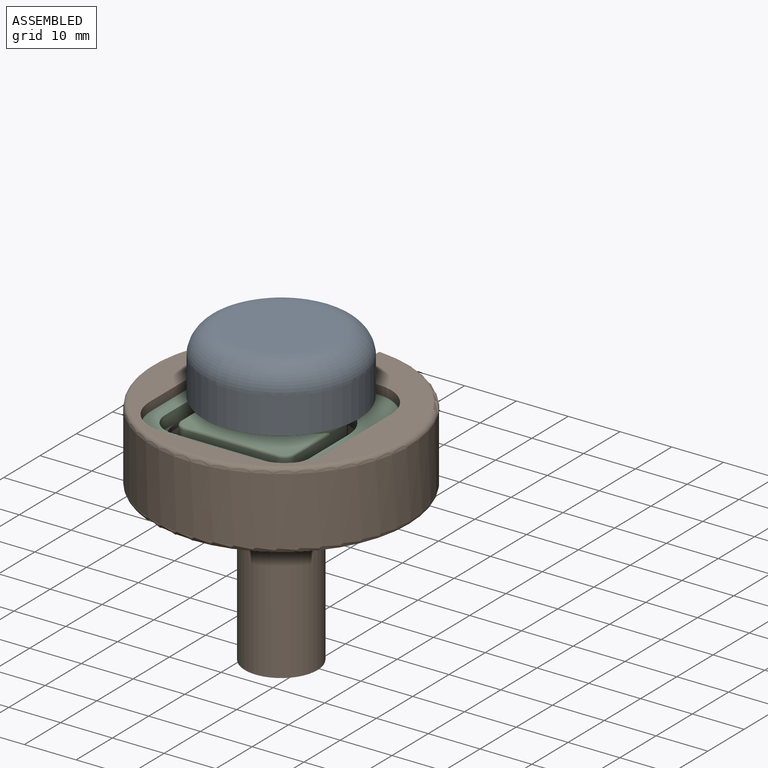
[diagram: assembled view]
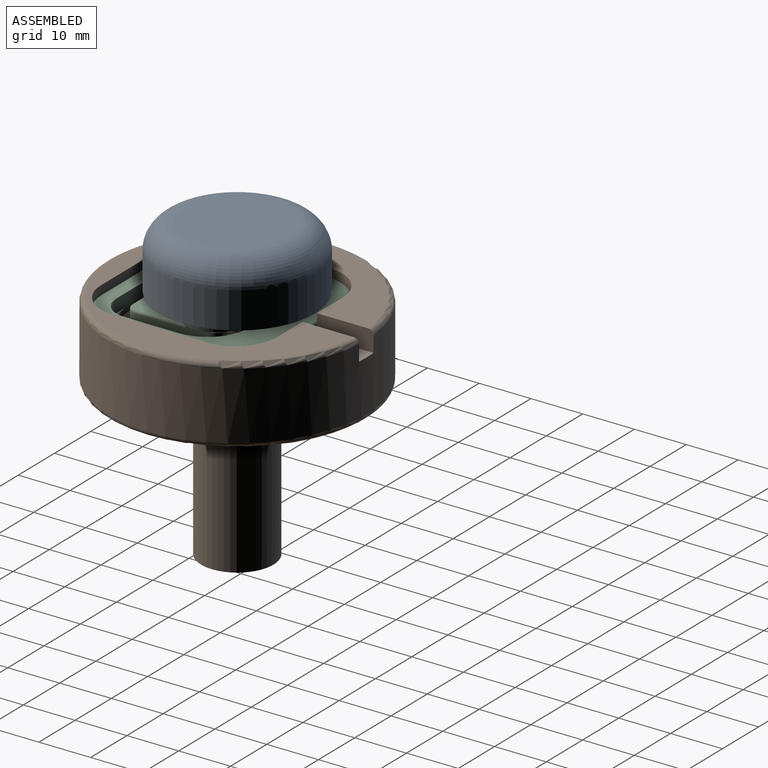
[diagram: assembled view, second angle]
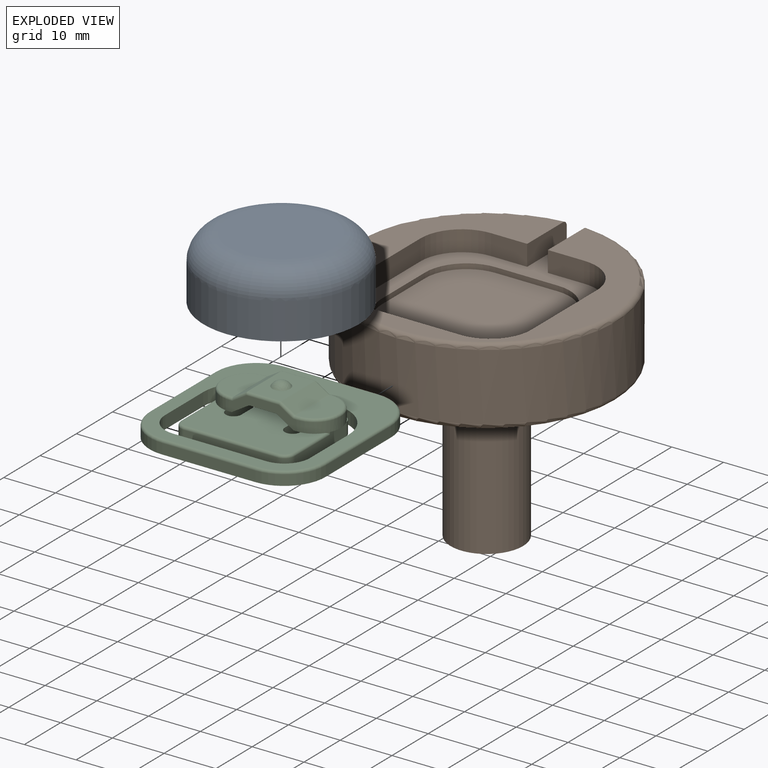
[diagram: exploded view]
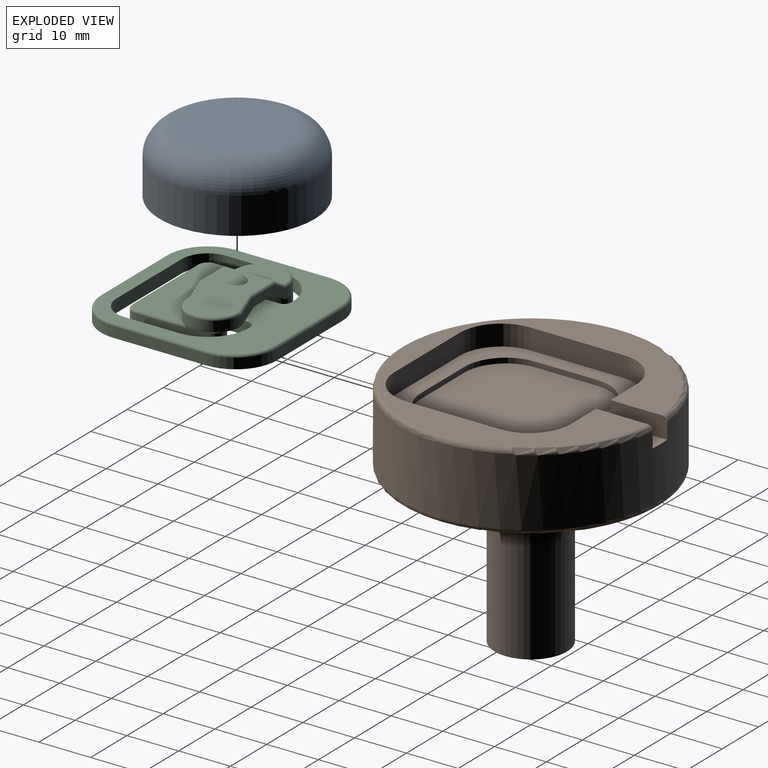
[diagram: exploded view, second angle]
ASSEMBLY  parts=3 mates=2
PART A: 19 faces, bbox 32.6x12.5x32.6 mm
  f0: plane 30.09x30.09mm, normal (0,1,0), area 583.5mm2, adj f2,f3,f4,f5,f6,f7,f8,f9
  f1: plane 20x20mm, normal (0,-1,0), area 314.2mm2, adj f18
  f2: cylinder r=15mm len=30mm, axis (0,1,0), area 659.7mm2, adj f0,f18
  f3: plane 10.1x1.2mm, normal (0,0,-1), area 9.8mm2, adj f0,f5,f7,f15
  f4: plane 10.1x1.2mm, normal (0,0,1), area 9.8mm2, adj f0,f9,f10,f17
  f5: cylinder r=0.5mm len=2.89mm, axis (-0.85,0.53,0), area 2.2mm2, adj f0,f3,f6,f13,f15
  f6: torus R=1mm, axis (0,0,1), area 0mm2, adj f0,f5,f16
  f7: cylinder r=0.5mm len=3.01mm, axis (-0.85,-0.53,0), area 2.3mm2, adj f0,f3,f11,f15
  f8: torus R=1mm, axis (0,0,1), area 0mm2, adj f0,f9,f16
  f9: cylinder r=0.5mm len=2.89mm, axis (0.85,-0.53,0), area 2.2mm2, adj f0,f4,f8,f13,f17
  f10: cylinder r=0.5mm len=3.01mm, axis (0.85,0.53,0), area 2.3mm2, adj f0,f4,f11,f17
  f11: plane 9.2x2.75mm, normal (-0.53,0.85,0), area 29.7mm2, adj f0,f7,f10,f12
  f12: plane 9.2x6.5mm, normal (0,1,0), area 50.4mm2, adj f11,f13,f14,f15,f17
  f13: plane 9.2x2.63mm, normal (0.53,0.85,0), area 28.4mm2, adj f5,f9,f12,f16
  f14: sphere r=2mm, area 12.6mm2, adj f12
  f15: cylinder r=0.5mm len=6.5mm, axis (-1,0,0), area 5mm2, adj f3,f5,f7,f12
  f16: cylinder r=0.5mm len=9.2mm, axis (0,0,1), area 2.5mm2, adj f0,f6,f8,f13
  f17: cylinder r=0.5mm len=6.5mm, axis (1,0,0), area 5mm2, adj f4,f9,f10,f12
  f18: torus R=10mm, axis (0,-1,0), area 650.6mm2, adj f1,f2
PART B: 30 faces, bbox 54.1x54.1x45 mm
  f0: plane 7x4mm, normal (0,-1,0), area 28mm2, adj f2,f3,f20,f23
  f1: cylinder r=25mm len=50mm, axis (0,0,-1), area 2030mm2, adj f20,f22,f23,f24,f25
  f2: plane 48x47.92mm, normal (0,0,1), area 668.6mm2, adj f0,f3,f4,f5,f6,f7,f8,f9
  f3: cylinder r=8mm len=8mm, axis (0,0,-1), area 50.3mm2, adj f0,f2,f10,f20
  f4: plane 7x4mm, normal (0,-1,0), area 28mm2, adj f2,f5,f20,f22
  f5: cylinder r=8mm len=8mm, axis (0,0,-1), area 50.3mm2, adj f2,f4,f6,f20
  f6: plane 18x4mm, normal (-1,0,0), area 72mm2, adj f2,f5,f7,f20
  f7: cylinder r=8mm len=8mm, axis (0,0,-1), area 50.3mm2, adj f2,f6,f8,f20
  f8: plane 18x4mm, normal (0,1,0), area 72mm2, adj f2,f7,f9,f20
  f9: cylinder r=8mm len=8mm, axis (0,0,-1), area 50.3mm2, adj f2,f8,f10,f20
  f10: plane 18x4mm, normal (1,0,0), area 72mm2, adj f2,f3,f9,f20
  f11: plane 48x48mm, normal (0,0,-1), area 1655.6mm2, adj f25,f26
  f12: cylinder r=8mm len=8mm, axis (0,0,-1), area 12.6mm2, adj f13,f19,f20,f21
  f13: plane 12x1mm, normal (1,0,0), area 12mm2, adj f12,f14,f20,f21
  f14: cylinder r=8mm len=8mm, axis (0,0,-1), area 12.6mm2, adj f13,f15,f20,f21
  f15: plane 12x1mm, normal (0,-1,0), area 12mm2, adj f14,f16,f20,f21
  f16: cylinder r=8mm len=8mm, axis (0,0,-1), area 12.6mm2, adj f15,f17,f20,f21
  f17: plane 12x1mm, normal (-1,0,0), area 12mm2, adj f16,f18,f20,f21
  f18: cylinder r=8mm len=8mm, axis (0,0,-1), area 12.6mm2, adj f17,f19,f20,f21
  f19: plane 12x1mm, normal (0,1,0), area 12mm2, adj f12,f18,f20,f21
  f20: plane 45x34mm, normal (0,0,1), area 415.9mm2, adj f0,f1,f3,f4,f5,f6,f7,f8
  f21: plane 28x28mm, normal (0,0,1), area 729.1mm2, adj f12,f13,f14,f15,f16,f17,f18,f19
  f22: plane 10.92x4mm, normal (-1,0,0), area 43.5mm2, adj f1,f2,f4,f20,f24
  f23: plane 10.92x4mm, normal (1,0,0), area 43.5mm2, adj f0,f1,f2,f20,f24
  f24: torus R=24mm, axis (0,0,1), area 236.9mm2, adj f1,f2,f22,f23
  f25: torus R=24mm, axis (0,0,1), area 243.2mm2, adj f1,f11
  f26: cylinder r=7mm len=30mm, axis (0,0,1), area 1319.5mm2, adj f11,f27
  f27: plane 14x14mm, normal (0,0,-1), area 110.9mm2, adj f26,f29
  f28: cone r=0mm half-angle=59deg, axis (0,0,-1), area 50.2mm2, adj f29
  f29: cylinder r=3.7mm len=30mm, axis (0,0,-1), area 697.4mm2, adj f27,f28
PART C: 93 faces, bbox 35.3x7.7x35.3 mm
  f0: plane 5.29x3.98mm, normal (0,1,0), area 14.4mm2, adj f41,f54,f56,f91
  f1: plane 33x33mm, normal (0,-1,0), area 689.9mm2, adj f11,f12,f13,f14,f15,f16,f17,f18
  f2: plane 1.57x1.21mm, normal (0,-1,0), area 0.2mm2, adj f28,f47
  f3: plane 1.57x1.21mm, normal (0,-1,0), area 0.2mm2, adj f22,f42
  f4: plane 18x2mm, normal (0,0,1), area 36mm2, adj f5,f35,f36,f65
  f5: cylinder r=8mm len=8mm, axis (0,1,0), area 25.1mm2, adj f4,f6,f36,f63
  f6: plane 18x2mm, normal (-1,0,0), area 36mm2, adj f5,f7,f36,f61
  f7: cylinder r=8mm len=8mm, axis (0,1,0), area 25.1mm2, adj f6,f8,f36,f59
  f8: plane 18x2mm, normal (0,0,-1), area 36mm2, adj f7,f9,f36,f58
  f9: cylinder r=8mm len=8mm, axis (0,1,0), area 25.1mm2, adj f8,f10,f36,f60
  f10: plane 18x2mm, normal (1,0,0), area 36mm2, adj f9,f35,f36,f62
  f11: plane 10.5x2.5mm, normal (1,0,0), area 26.2mm2, adj f1,f12,f34,f36
  f12: cylinder r=5mm len=5mm, axis (0,1,0), area 19.6mm2, adj f1,f11,f13,f36
  f13: plane 18x2.5mm, normal (0,0,-1), area 45mm2, adj f1,f12,f14,f36
  f14: cylinder r=5mm len=5mm, axis (0,1,0), area 19.6mm2, adj f1,f13,f15,f36
  f15: plane 10.5x2.5mm, normal (-1,0,0), area 26.2mm2, adj f1,f14,f16,f36
  f16: cylinder r=8mm len=8mm, axis (0,1,0), area 31.4mm2, adj f1,f15,f17,f36
  f17: plane 2.5x0.3mm, normal (0,0,1), area 0.7mm2, adj f1,f16,f18,f36
  f18: cylinder r=1.5mm len=2.5mm, axis (0,1,0), area 5.9mm2, adj f1,f17,f19,f36
  f19: plane 10x2.5mm, normal (1,0,0), area 25mm2, adj f1,f18,f20,f36
  f20: cylinder r=1.5mm len=3mm, axis (0,1,0), area 11.8mm2, adj f1,f19,f21,f36,f37
  f21: plane 7.1x2.5mm, normal (-1,0,0), area 17.8mm2, adj f20,f22,f36,f37
  f22: cylinder r=1.9mm len=3.8mm, axis (0,1,0), area 14.9mm2, adj f3,f21,f23,f36,f37,f44
  f23: plane 14.1x2.5mm, normal (1,0,0), area 30.4mm2, adj f22,f24,f36,f39,f44,f85
  f24: cylinder r=2mm len=2mm, axis (0,1,0), area 6.3mm2, adj f23,f25,f36,f86
  f25: plane 18x2mm, normal (0,0,1), area 36mm2, adj f24,f26,f36,f87
  f26: cylinder r=2mm len=2mm, axis (0,1,0), area 6.3mm2, adj f25,f27,f36,f88
  f27: plane 14.1x2.5mm, normal (-1,0,0), area 30.4mm2, adj f26,f28,f36,f45,f48,f89
  f28: cylinder r=1.9mm len=3.8mm, axis (0,1,0), area 14.9mm2, adj f2,f27,f29,f36,f45,f50
  f29: plane 7.1x2.5mm, normal (1,0,0), area 17.8mm2, adj f28,f30,f36,f50
  f30: cylinder r=1.5mm len=3mm, axis (0,1,0), area 11.8mm2, adj f1,f29,f31,f36,f50
  f31: plane 10x2.5mm, normal (-1,0,0), area 25mm2, adj f1,f30,f32,f36
  f32: cylinder r=1.5mm len=2.5mm, axis (0,1,0), area 5.9mm2, adj f1,f31,f33,f36
  f33: plane 2.5x0.3mm, normal (0,0,1), area 0.7mm2, adj f1,f32,f34,f36
  f34: cylinder r=8mm len=8mm, axis (0,1,0), area 31.4mm2, adj f1,f11,f33,f36
  f35: cylinder r=8mm len=8mm, axis (0,1,0), area 25.1mm2, adj f4,f10,f36,f64
  f36: plane 34x34mm, normal (0,1,0), area 830.2mm2, adj f4,f5,f6,f7,f8,f9,f10,f11
  f37: plane 10.2x3.78mm, normal (0,1,0), area 14.6mm2, adj f20,f21,f22,f39,f40,f41,f42,f56
  f38: plane 2x0.2mm, normal (1,0,0), area 0.4mm2, adj f39,f42,f44,f81
  f39: cylinder r=5mm len=5mm, axis (0,1,0), area 15.8mm2, adj f1,f23,f37,f38,f40,f44,f79,f85
  f40: plane 13x3.7mm, normal (0,0,1), area 23.3mm2, adj f37,f39,f48,f50,f54,f55,f56,f68
  f41: plane 13x3.7mm, normal (0,0,-1), area 23.3mm2, adj f0,f37,f42,f47,f50,f54,f56,f73
  f42: cylinder r=5mm len=5mm, axis (0,1,0), area 15.7mm2, adj f3,f37,f38,f41,f44,f83
  f43: plane 9.2x5mm, normal (0,-1,0), area 37.3mm2, adj f51,f77,f79,f81,f83,f84
  f44: plane 4.58x0.51mm, normal (0,1,0), area 1.6mm2, adj f22,f23,f38,f39,f42
  f45: plane 4.58x0.51mm, normal (0,1,0), area 1.6mm2, adj f27,f28,f46,f47,f48
  f46: plane 2x0.2mm, normal (-1,0,0), area 0.4mm2, adj f45,f47,f48,f67
  f47: cylinder r=5mm len=5mm, axis (0,1,0), area 15.7mm2, adj f2,f41,f45,f46,f50,f70
  f48: cylinder r=5mm len=5mm, axis (0,1,0), area 15.8mm2, adj f1,f27,f40,f45,f46,f50,f66,f89
  f49: plane 9.2x4.86mm, normal (0,-1,0), area 36mm2, adj f66,f67,f68,f70,f73,f74
  f50: plane 10.2x3.78mm, normal (0,1,0), area 14.6mm2, adj f28,f29,f30,f40,f41,f47,f48,f54
  f51: plane 9.2x2.75mm, normal (0.53,-0.85,0), area 29.7mm2, adj f43,f52,f75,f82
  f52: plane 9.2x6.5mm, normal (0,-1,0), area 50.4mm2, adj f51,f53,f57,f72,f80
  f53: plane 9.2x2.63mm, normal (-0.53,-0.85,0), area 28.4mm2, adj f52,f69,f74,f78
  f54: plane 10.2x3.35mm, normal (0.53,0.85,0), area 40mm2, adj f0,f40,f41,f50,f55,f91
  f55: plane 5.29x3.98mm, normal (0,1,0), area 14.4mm2, adj f40,f54,f56,f91
  f56: plane 10.2x3.35mm, normal (-0.53,0.85,0), area 40mm2, adj f0,f37,f40,f41,f55,f91
  f57: sphere r=2mm, area 12.6mm2, adj f52
  f58: cylinder r=0.5mm len=18mm, axis (-1,0,0), area 14.1mm2, adj f1,f8,f59,f60
  f59: torus R=7.5mm, axis (0,-1,0), area 9.6mm2, adj f1,f7,f58,f61
  f60: torus R=7.5mm, axis (0,-1,0), area 9.6mm2, adj f1,f9,f58,f62
  f61: cylinder r=0.5mm len=18mm, axis (0,0,1), area 14.1mm2, adj f1,f6,f59,f63
  f62: cylinder r=0.5mm len=18mm, axis (0,0,-1), area 14.1mm2, adj f1,f10,f60,f64
  f63: torus R=7.5mm, axis (0,-1,0), area 9.6mm2, adj f1,f5,f61,f65
  f64: torus R=7.5mm, axis (0,-1,0), area 9.6mm2, adj f1,f35,f62,f65
  f65: cylinder r=0.5mm len=18mm, axis (1,0,0), area 14.1mm2, adj f1,f4,f63,f64
  f66: torus R=4.5mm, axis (0,-1,0), area 5.9mm2, adj f48,f49,f67,f68
  f67: cylinder r=0.5mm len=0.5mm, axis (0,0,1), area 0.2mm2, adj f46,f49,f66,f70
  f68: cylinder r=0.5mm len=0.5mm, axis (1,0,0), area 0.3mm2, adj f40,f49,f66,f71
  f69: cylinder r=0.5mm len=2.89mm, axis (-0.85,0.53,0), area 2.4mm2, adj f40,f53,f71,f72
  f70: torus R=4.5mm, axis (0,-1,0), area 5.9mm2, adj f47,f49,f67,f73
  f71: torus R=1mm, axis (0,0,1), area 0.3mm2, adj f40,f68,f69,f74
  f72: cylinder r=0.5mm len=6.5mm, axis (-1,0,0), area 5mm2, adj f40,f52,f69,f75
  f73: cylinder r=0.5mm len=0.5mm, axis (-1,0,0), area 0.3mm2, adj f41,f49,f70,f76
  f74: cylinder r=0.5mm len=9.2mm, axis (0,0,1), area 2.5mm2, adj f49,f53,f71,f76
  f75: cylinder r=0.5mm len=3.13mm, axis (-0.85,-0.53,0), area 2.5mm2, adj f40,f51,f72,f77
  f76: torus R=1mm, axis (0,0,1), area 0.3mm2, adj f41,f73,f74,f78
  f77: cylinder r=0.5mm len=0.64mm, axis (1,0,0), area 0.4mm2, adj f40,f43,f75,f79
  f78: cylinder r=0.5mm len=2.89mm, axis (0.85,-0.53,0), area 2.4mm2, adj f41,f53,f76,f80
  f79: torus R=4.5mm, axis (0,-1,0), area 5.9mm2, adj f39,f43,f77,f81
  f80: cylinder r=0.5mm len=6.5mm, axis (1,0,0), area 5mm2, adj f41,f52,f78,f82
  f81: cylinder r=0.5mm len=0.5mm, axis (0,0,-1), area 0.2mm2, adj f38,f43,f79,f83
  f82: cylinder r=0.5mm len=3.13mm, axis (0.85,0.53,0), area 2.5mm2, adj f41,f51,f80,f84
  f83: torus R=4.5mm, axis (0,-1,0), area 5.9mm2, adj f42,f43,f81,f84
  f84: cylinder r=0.5mm len=0.64mm, axis (-1,0,0), area 0.4mm2, adj f41,f43,f82,f83
  f85: cylinder r=0.5mm len=9.72mm, axis (0,0,-1), area 7.4mm2, adj f1,f23,f39,f86
  f86: torus R=1.5mm, axis (0,-1,0), area 2.2mm2, adj f1,f24,f85,f87
  f87: cylinder r=0.5mm len=18mm, axis (1,0,0), area 14.1mm2, adj f1,f25,f86,f88
  f88: torus R=1.5mm, axis (0,-1,0), area 2.2mm2, adj f1,f26,f87,f89
  f89: cylinder r=0.5mm len=9.72mm, axis (0,0,1), area 7.4mm2, adj f1,f27,f48,f88
  f90: plane 8x8mm, normal (0,1,0), area 50.3mm2, adj f91
  f91: cone r=1mm half-angle=45deg, axis (0,-1,0), area 34.8mm2, adj f0,f54,f55,f56,f90
  f92: cylinder r=1mm len=2.5mm, axis (0,-1,0), area 15.7mm2, adj f1,f36
PLACE A rot(axis=(-1,0,0),90deg) t=(-33.3,-60,-4.38)mm
PLACE B t=(-33.3,-63,-15.38)mm
PLACE C rot(axis=(0,-0.71,0.71),180deg) t=(-33.3,-66,-4.38)mm
MATE fastened C.f4 <-> B.f8  axis (0,-1,0) through (-33.3,-83,-4.38)mm
MATE fastened A.f2 <-> C.f91  axis (0,0,-1) through (-33.3,-63,2.32)mm
